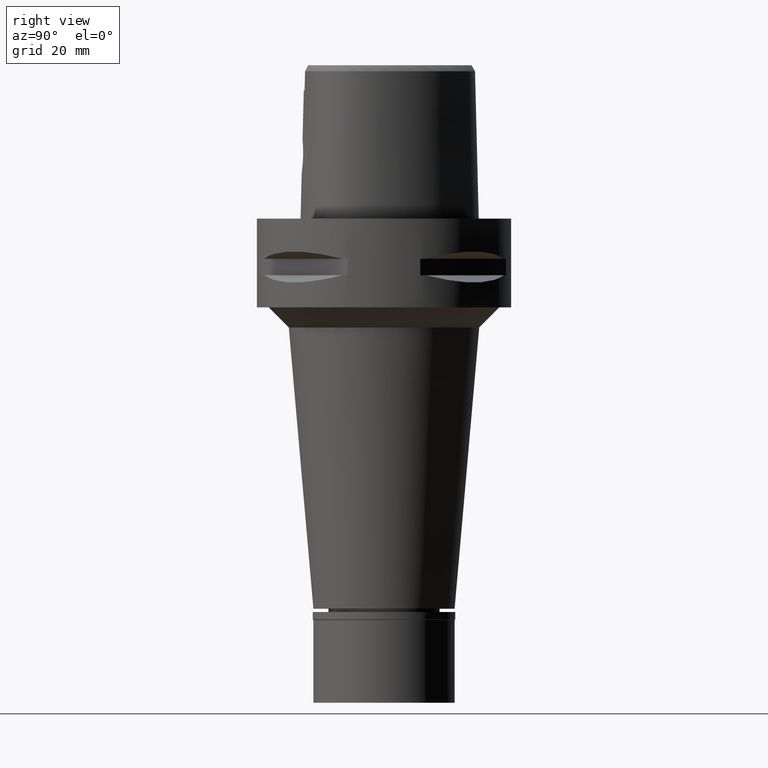
[diagram: clean part render]
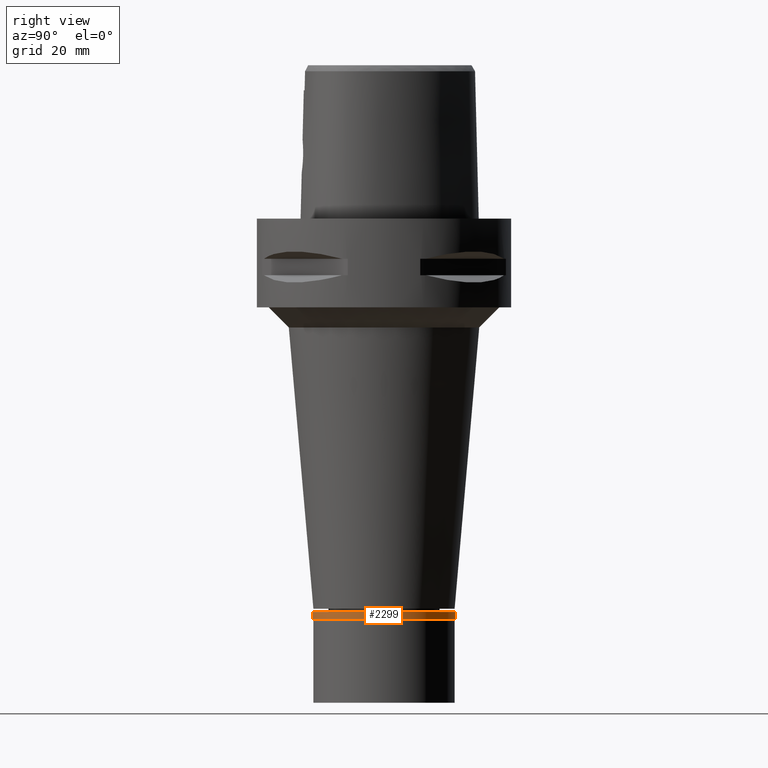
[diagram: same view with one face highlighted and labeled with its STEP entity id]
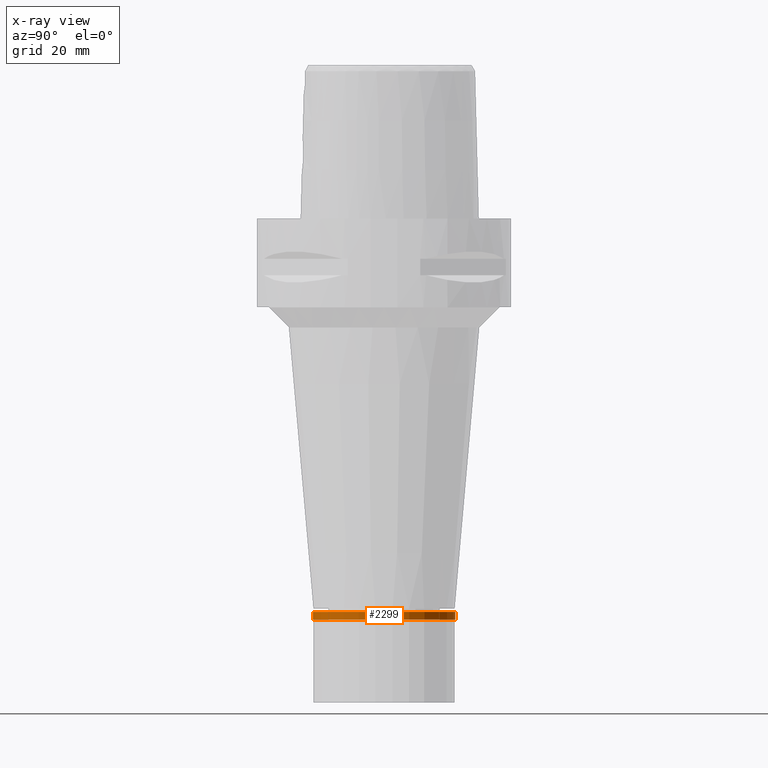
[diagram: x-ray of the same camera — body ghosted, the highlighted face saturated]
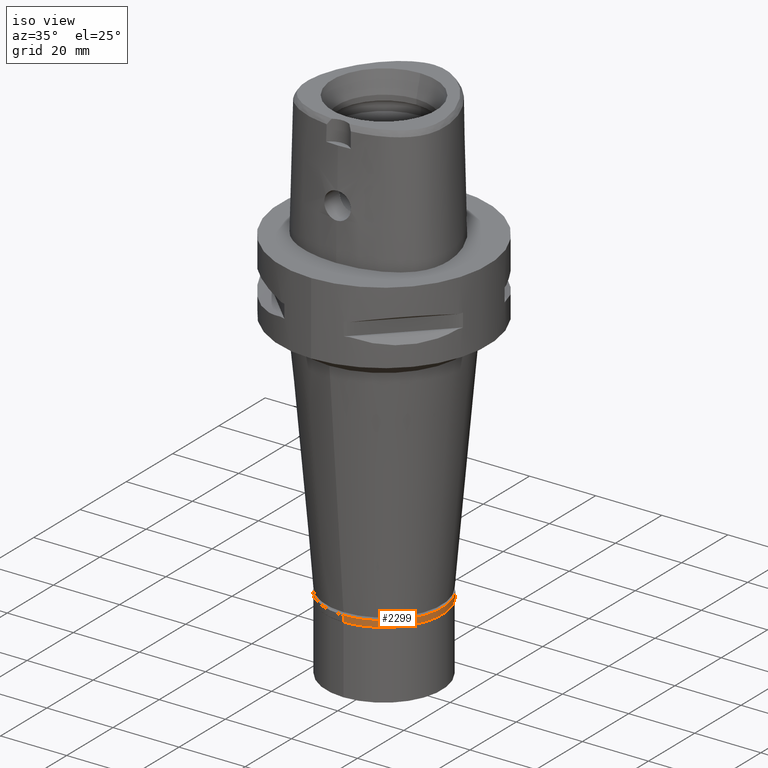
[diagram: same view with one face highlighted and labeled with its STEP entity id]
A machine part, right view. The second image highlights one B-rep face of the part: STEP entity #2299.
The next image is the same camera in x-ray: the body ghosted, the highlighted face saturated — about 0% of this face is hidden behind the body in this view.
A second angle (iso view) of the same face is appended — the face is thin or edge-on in the first view.
In plain terms, the highlighted cylindrical surface (partial cylindrical patch) has radius 17.65 mm, axis along (0, 0, -1).
Its self-contained STEP definition (entity closure, byte-faithful):
#314 = VECTOR ( 'NONE', #2085, 1000.000000000000000 ) ;
#327 = AXIS2_PLACEMENT_3D ( 'NONE', #867, #2441, #1670 ) ;
#391 = LINE ( 'NONE', #3586, #4362 ) ;
#540 = VERTEX_POINT ( 'NONE', #4601 ) ;
#730 = CIRCLE ( 'NONE', #3715, 17.64999999999999858 ) ;
#768 = CARTESIAN_POINT ( 'NONE',  ( 0.0000000000000000000, 0.0000000000000000000, -1.850000000000000089 ) ) ;
#810 = DIRECTION ( 'NONE',  ( 0.0000000000000000000, -1.000000000000000000, 0.0000000000000000000 ) ) ;
#817 = ORIENTED_EDGE ( 'NONE', *, *, #3602, .T. ) ;
#867 = CARTESIAN_POINT ( 'NONE',  ( 0.0000000000000000000, 0.0000000000000000000, 0.0000000000000000000 ) ) ;
#1234 = DIRECTION ( 'NONE',  ( 0.0000000000000000000, 0.0000000000000000000, 1.000000000000000000 ) ) ;
#1501 = ORIENTED_EDGE ( 'NONE', *, *, #4761, .T. ) ;
#1670 = DIRECTION ( 'NONE',  ( 0.0000000000000000000, 1.000000000000000000, 0.0000000000000000000 ) ) ;
#1873 = VERTEX_POINT ( 'NONE', #3603 ) ;
#2085 = DIRECTION ( 'NONE',  ( 0.0000000000000000000, 0.0000000000000000000, -1.000000000000000000 ) ) ;
#2093 = VERTEX_POINT ( 'NONE', #2962 ) ;
#2299 = ADVANCED_FACE ( 'NONE', ( #3437 ), #4702, .T. ) ;
#2441 = DIRECTION ( 'NONE',  ( 0.0000000000000000000, 0.0000000000000000000, -1.000000000000000000 ) ) ;
#2483 = ORIENTED_EDGE ( 'NONE', *, *, #3021, .T. ) ;
#2522 = EDGE_LOOP ( 'NONE', ( #1501, #2483, #817, #4981 ) ) ;
#2626 = VERTEX_POINT ( 'NONE', #4426 ) ;
#2752 = CARTESIAN_POINT ( 'NONE',  ( 0.0000000000000000000, 0.0000000000000000000, 0.0000000000000000000 ) ) ;
#2769 = DIRECTION ( 'NONE',  ( 0.0000000000000000000, 0.0000000000000000000, -1.000000000000000000 ) ) ;
#2887 = CIRCLE ( 'NONE', #327, 17.64999999999999858 ) ;
#2962 = CARTESIAN_POINT ( 'NONE',  ( 0.0000000000000000000, 17.64999999999999858, -1.850000000000000089 ) ) ;
#3021 = EDGE_CURVE ( 'NONE', #2626, #1873, #391, .T. ) ;
#3437 = FACE_OUTER_BOUND ( 'NONE', #2522, .T. ) ;
#3493 = DIRECTION ( 'NONE',  ( 0.0000000000000000000, -1.000000000000000000, 0.0000000000000000000 ) ) ;
#3586 = CARTESIAN_POINT ( 'NONE',  ( 0.0000000000000000000, -17.64999999999999858, 0.0000000000000000000 ) ) ;
#3602 = EDGE_CURVE ( 'NONE', #1873, #2093, #730, .T. ) ;
#3603 = CARTESIAN_POINT ( 'NONE',  ( 0.0000000000000000000, -17.64999999999999858, -1.850000000000000089 ) ) ;
#3715 = AXIS2_PLACEMENT_3D ( 'NONE', #768, #1234, #810 ) ;
#3816 = EDGE_CURVE ( 'NONE', #540, #2093, #4795, .T. ) ;
#3933 = DIRECTION ( 'NONE',  ( 0.0000000000000000000, 0.0000000000000000000, -1.000000000000000000 ) ) ;
#4362 = VECTOR ( 'NONE', #2769, 1000.000000000000000 ) ;
#4425 = CARTESIAN_POINT ( 'NONE',  ( 0.0000000000000000000, 17.64999999999999858, 0.0000000000000000000 ) ) ;
#4426 = CARTESIAN_POINT ( 'NONE',  ( 0.0000000000000000000, -17.64999999999999858, 0.0000000000000000000 ) ) ;
#4601 = CARTESIAN_POINT ( 'NONE',  ( 0.0000000000000000000, 17.64999999999999858, 0.0000000000000000000 ) ) ;
#4692 = AXIS2_PLACEMENT_3D ( 'NONE', #2752, #3933, #3493 ) ;
#4702 = CYLINDRICAL_SURFACE ( 'NONE', #4692, 17.64999999999999858 ) ;
#4761 = EDGE_CURVE ( 'NONE', #540, #2626, #2887, .T. ) ;
#4795 = LINE ( 'NONE', #4425, #314 ) ;
#4981 = ORIENTED_EDGE ( 'NONE', *, *, #3816, .F. ) ;